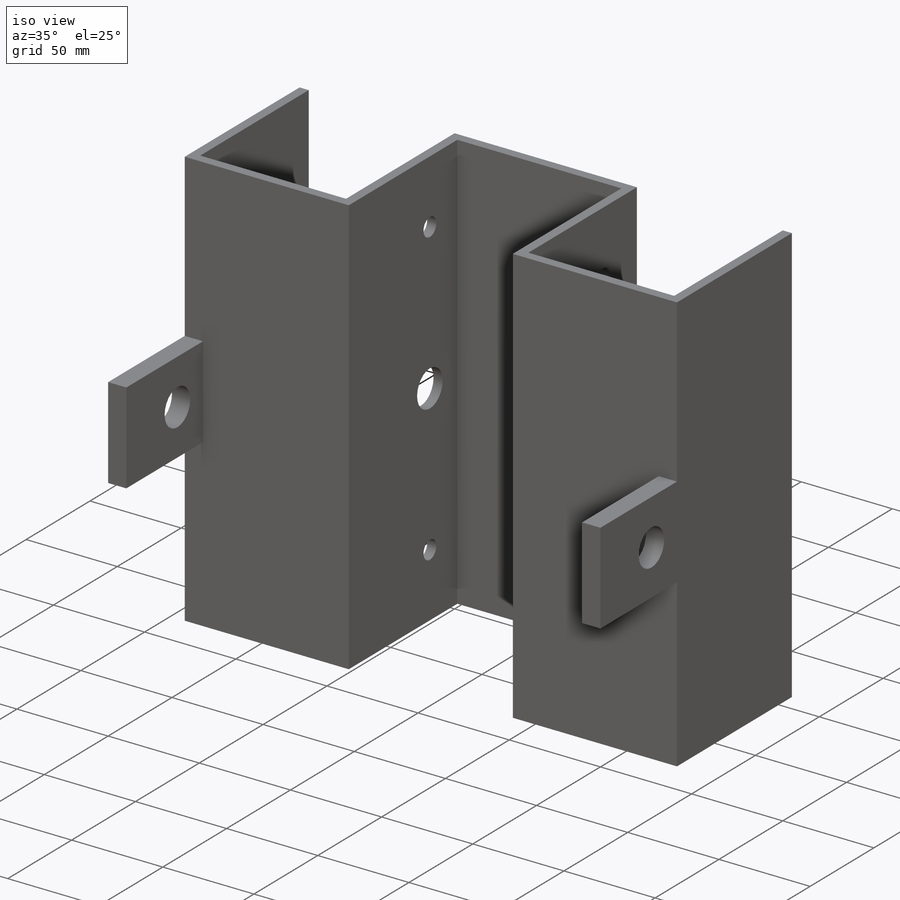
[diagram: iso view]
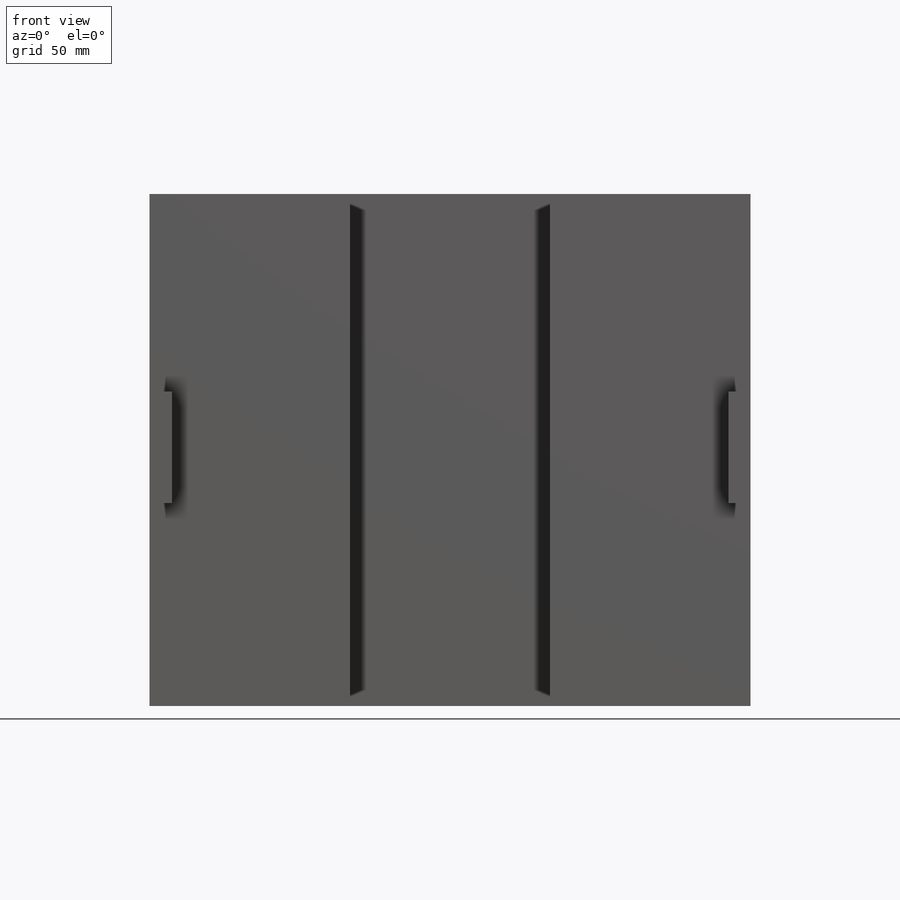
[diagram: front view]
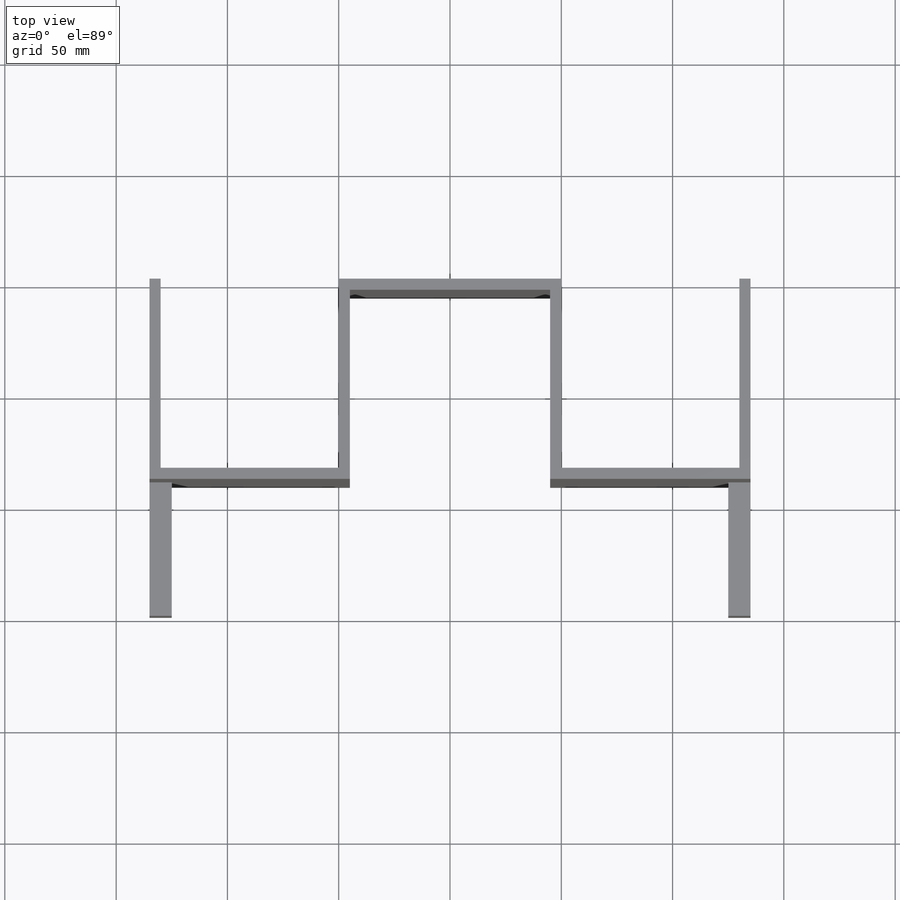
[diagram: top view]
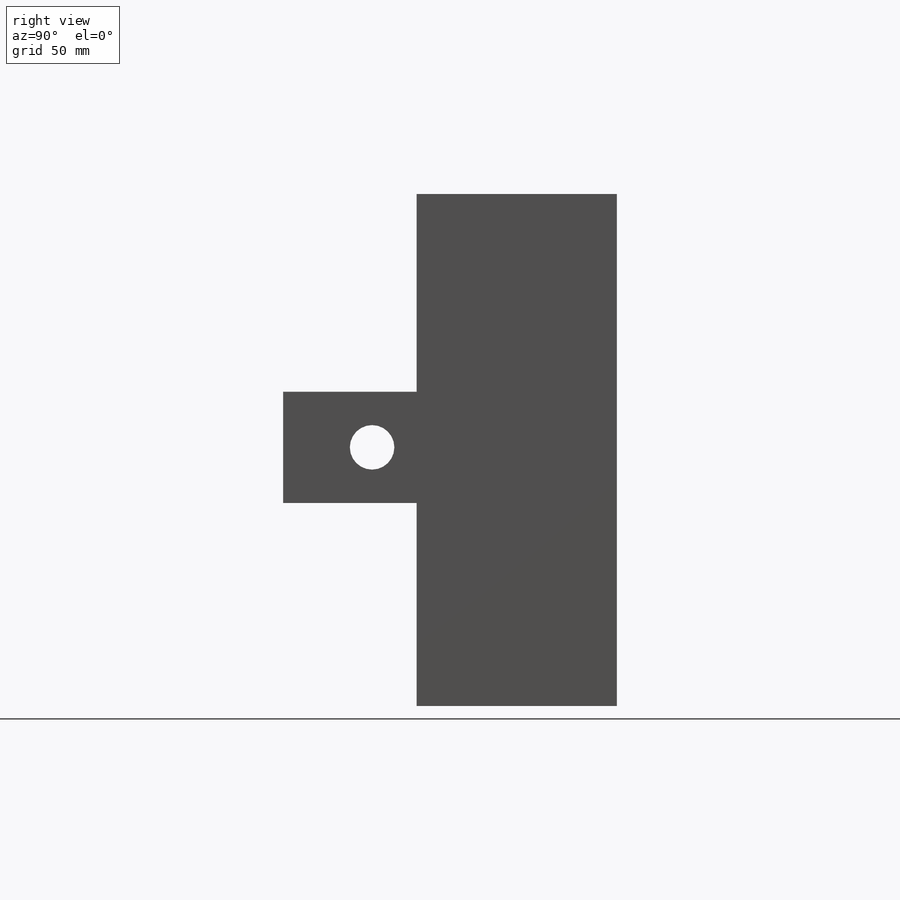
[diagram: right view]
SOLIDWORKS PART (.sldprt)
format: sldprt  version: not decoded by parser v0  size: 301,056 bytes
history: native  units: mm
features: sketch x10, extrude x6, plane x3, cut_extrude x3, material x1, mirror x1 (+9 scaffold rows collapsed)
feature tree (33):
  scaffold x9  (default folders/planes/origin — collapsed)
  material  "Matériau <non spécifié>"
  plane  "Plan de face"
  plane  "Plan de dessus"
  plane  "Plan de droite"
  sketch  "Esquisse1"  dims[D1=250.0mm D2=50.0mm]
  extrude  "Boss.-Extru.1"  Depth=5mm
  sketch  "Esquisse2"  dims[D1=5.0mm]
  extrude  "Boss.-Extru.2"  Depth=80mm
  sketch  "Esquisse3"  dims[D1=85.0mm]
  extrude  "Boss.-Extru.3"  Depth=5mm
  sketch  "Esquisse4"
  extrude  "Boss.-Extru.4"  Depth=5mm
  sketch  "Esquisse5"  dims[c1.D1=20.0mm c1.D3=20.0mm c1.D2=26.5mm c2.D3=125.0mm]
  cut_extrude  "Enlèv. mat.-Extru.1"  Depth=5mm
  sketch  "Esquisse6"  dims[c1.D1=70.0mm c1.D2=70.0mm c1.D3=70.0mm c1.D4=70.0mm c1.D5=70.0mm c1.D6=10.0mm c1.D7=10.0mm c2.D4=80.0mm c2.D5=80.0mm]
  cut_extrude  "Enlèv. mat.-Extru.2"  Depth=5mm
  mirror  "Symétrie2"
  sketch  "Esquisse7"
  sketch  "Esquisse8"  dims[c1.D1=~47.817451mm c1.D2=20.0mm c1.D4=40.0mm c1.D5=20.0mm c2.D1=125.0mm c2.D3=35.0mm c2.D4=125.0mm c3.D1=60.0mm c3.D2=50.0mm c3.D3=20.0mm]
  extrude  "Boss.-Extru.5"  Depth=10mm
  sketch  "Esquisse9"
  extrude  "Boss.-Extru.6"  Depth=10mm
  sketch  "Esquisse11"  dims[D1=10.0mm D2=10.0mm]
  cut_extrude  "Enlèv. mat.-Extru.6"  [1 undecoded]
decode coverage: 15 of 20 modeling features carry decoded parameters
note: ~ marks probable driven/reference dimensions
note: 1 parameter value undecoded
note: suppression state not decoded; provenance and decode notes live in map.json
